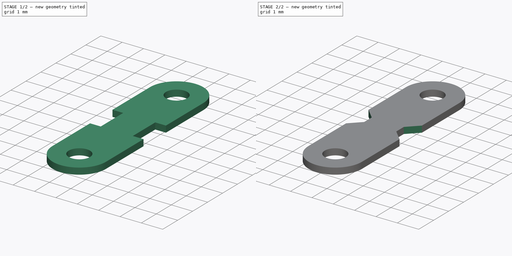
[diagram: build sequence overview — one tinted view per stage of 2, left to right]
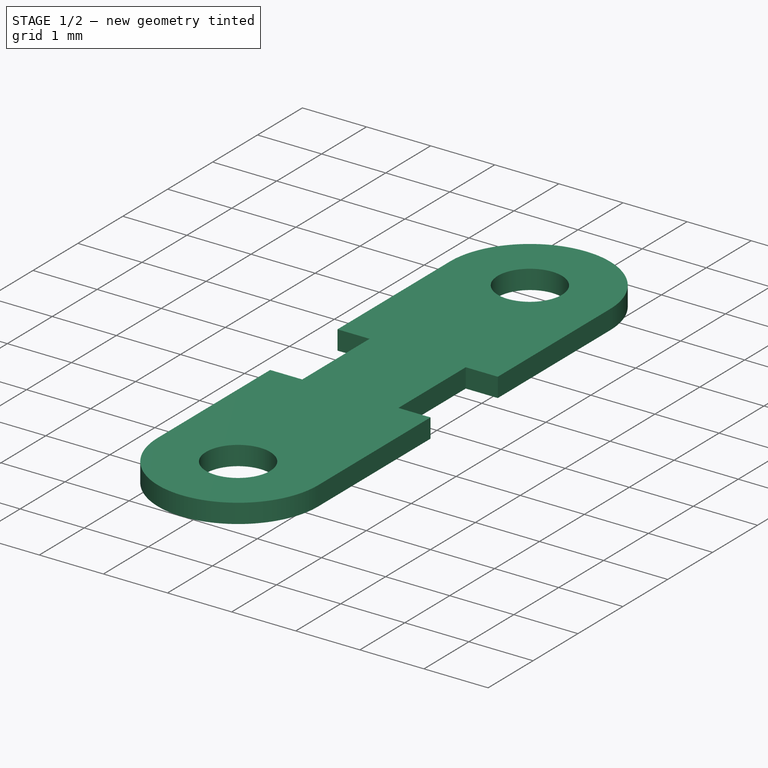
[diagram: stage 1 of 2 — iso view after this stage's code; geometry added in this stage tinted green]
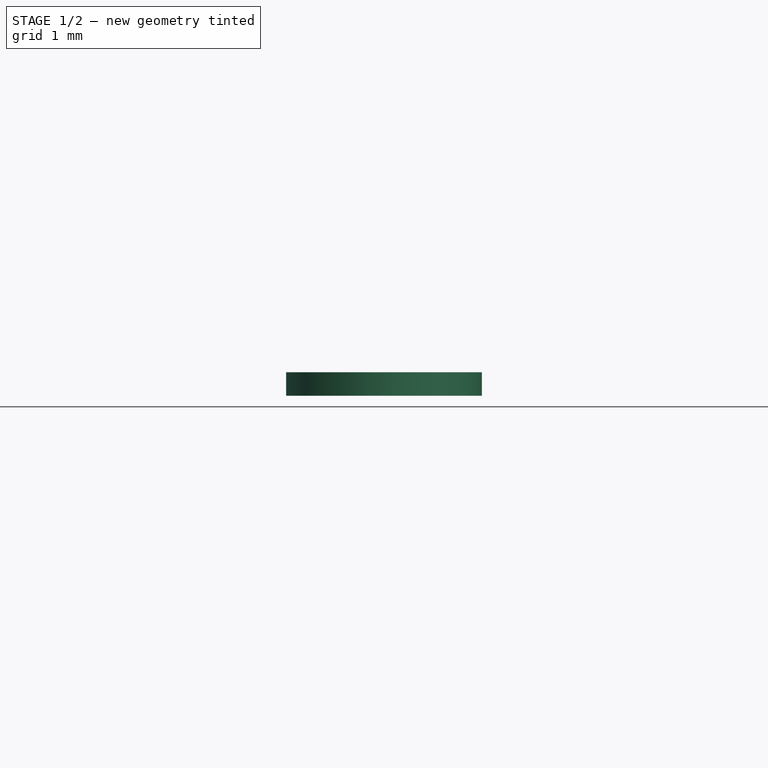
[diagram: stage 1 of 2 — front view after this stage's code; geometry added in this stage tinted green]
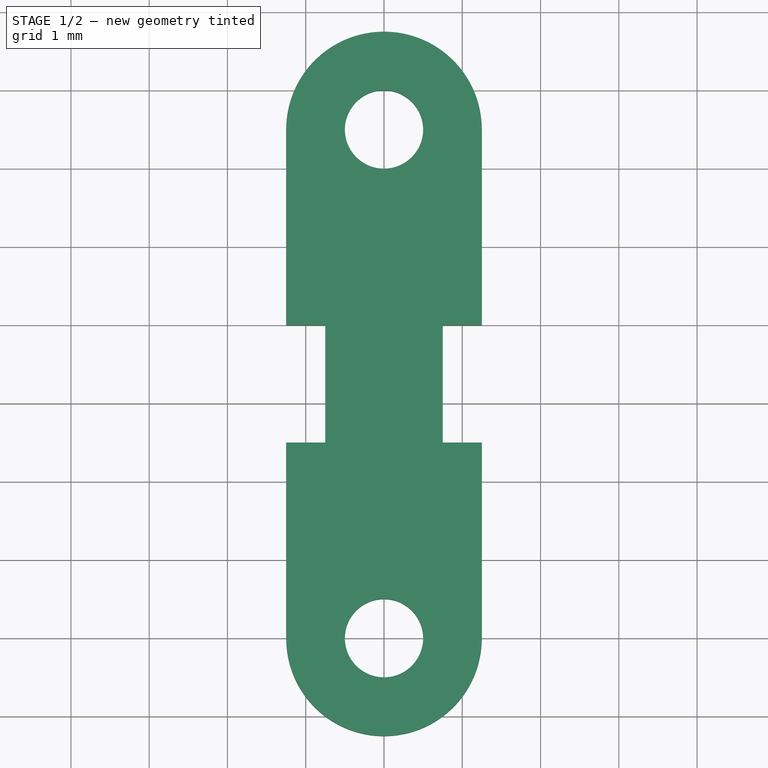
[diagram: stage 1 of 2 — top view after this stage's code; geometry added in this stage tinted green]
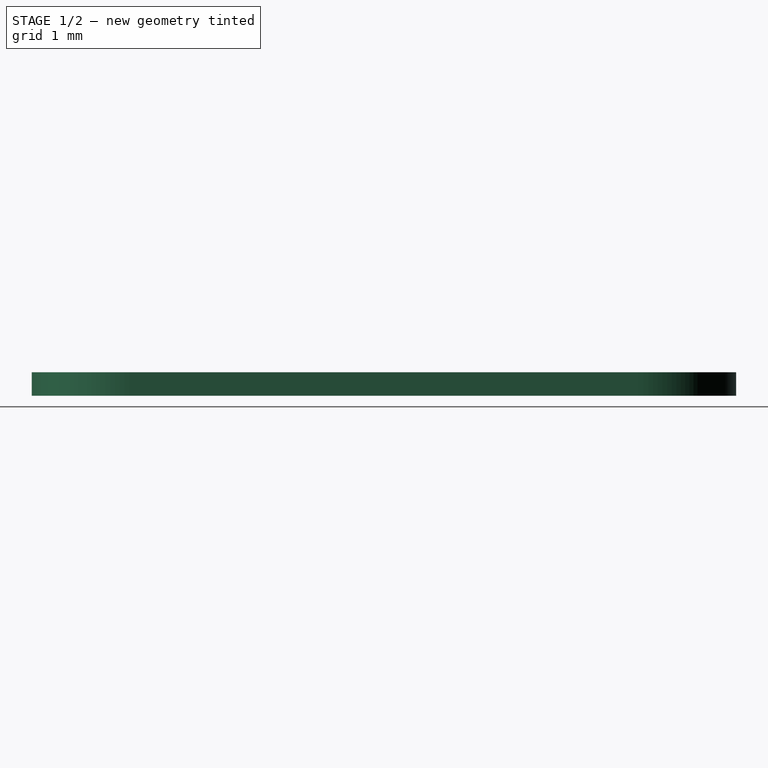
[diagram: stage 1 of 2 — right view after this stage's code; geometry added in this stage tinted green]
FCSTD DOCUMENT  (FreeCAD 0.18.3R)
Label: pot_tab
License: All rights reserved
LicenseURL: http://en.wikipedia.org/wiki/All_rights_reserved
objects: Sketcher::SketchObject×1, PartDesign::Pad×1, PartDesign::Chamfer×1, PartDesign::Body×1
note: 5 computed .brp shape members not serialized (recipe doc carries the construction recipe); baked Part::Feature solids carry a one-line shape summary decoded from their .brp

FEATURE [Sketcher::SketchObject] Sketch
  MapMode = 5
  Support = -> [XY_Plane]
  sketch-geometry (14):
    g0: LineSegment StartX=-0.75 StartY=0 StartZ=0 EndX=-0.75 EndY=-1.5 EndZ=0
    g1: LineSegment StartX=0.75 StartY=0 StartZ=0 EndX=0.75 EndY=-1.5 EndZ=0
    g2: LineSegment StartX=-0.75 StartY=-1.5 StartZ=0 EndX=-1.25 EndY=-1.5 EndZ=0
    g3: LineSegment StartX=0.75 StartY=-1.5 StartZ=0 EndX=1.25 EndY=-1.5 EndZ=0
    g4: LineSegment StartX=-1.25 StartY=-1.5 StartZ=0 EndX=-1.25 EndY=-4 EndZ=0
    g5: LineSegment StartX=1.25 StartY=-1.5 StartZ=0 EndX=1.25 EndY=-4 EndZ=0
    g6: ArcOfCircle CenterX=-1e-16 CenterY=-4 CenterZ=0 NormalX=0 NormalY=0 NormalZ=1 AngleXU=0 Radius=1.25 StartAngle=3.14159 EndAngle=6.28319
    g7: Circle CenterX=-1e-16 CenterY=-4 CenterZ=0 NormalX=0 NormalY=0 NormalZ=1 AngleXU=0 Radius=0.5
    g8: LineSegment StartX=0.75 StartY=0 StartZ=0 EndX=1.25 EndY=1e-16 EndZ=0
    g9: LineSegment StartX=-0.75 StartY=0 StartZ=0 EndX=-1.25 EndY=0 EndZ=0
    g10: LineSegment StartX=1.25 StartY=1e-16 StartZ=0 EndX=1.25 EndY=2.5 EndZ=0
    g11: LineSegment StartX=-1.25 StartY=0 StartZ=0 EndX=-1.25 EndY=2.5 EndZ=0
    g12: ArcOfCircle CenterX=0 CenterY=2.5 CenterZ=0 NormalX=0 NormalY=0 NormalZ=1 AngleXU=0 Radius=1.25 StartAngle=0 EndAngle=3.14159
    g13: Circle CenterX=0 CenterY=2.5 CenterZ=0 NormalX=0 NormalY=0 NormalZ=1 AngleXU=0 Radius=0.5
  constraints (40):
    c: Vertical(g0)
    c: Vertical(g1)
    c: Equal(g1,g0)
    c: Symmetric(g0,g1,g-2)
    c: DistanceY(g1,g1) = 1.5
    c: DistanceX(g0,g1) = 1.5
    c: Horizontal(g2)
    c: Coincident(g3,g1)
    c: Horizontal(g3)
    c: Equal(g2,g3)
    c: DistanceX(g2,g3) = 2.5
    c: Coincident(g2,g0)
    c: PointOnObject(g1,g-1)
    c: Coincident(g4,g2)
    c: Vertical(g4)
    c: Coincident(g5,g3)
    c: Vertical(g5)
    c: Equal(g5,g4)
    c: DistanceY(g5,g3) = 2.5
    c: Coincident(g6,g5)
    c: Coincident(g6,g4)
    c: Coincident(g7,g6)
    c: Diameter(g7) = 1
    c: Coincident(g8,g1)
    c: Coincident(g9,g0)
    c: PointOnObject(g9,g-1)
    c: Equal(g9,g8)
    c: Perpendicular(g8,g5) = 4.71239
    c: Horizontal(g6,g5)
    c: Coincident(g10,g8)
    c: Vertical(g10)
    c: Coincident(g11,g9)
    c: Vertical(g11)
    c: Equal(g11,g10)
    c: Equal(g10,g5)
    c: Coincident(g12,g10)
    c: Coincident(g12,g11)
    c: Horizontal(g12,g10)
    c: Coincident(g13,g12)
    c: Equal(g13,g7)
FEATURE [PartDesign::Pad] Pad
  Length = 0.3
  Length2 = 100
  Profile = -> Sketch
  Type = 0
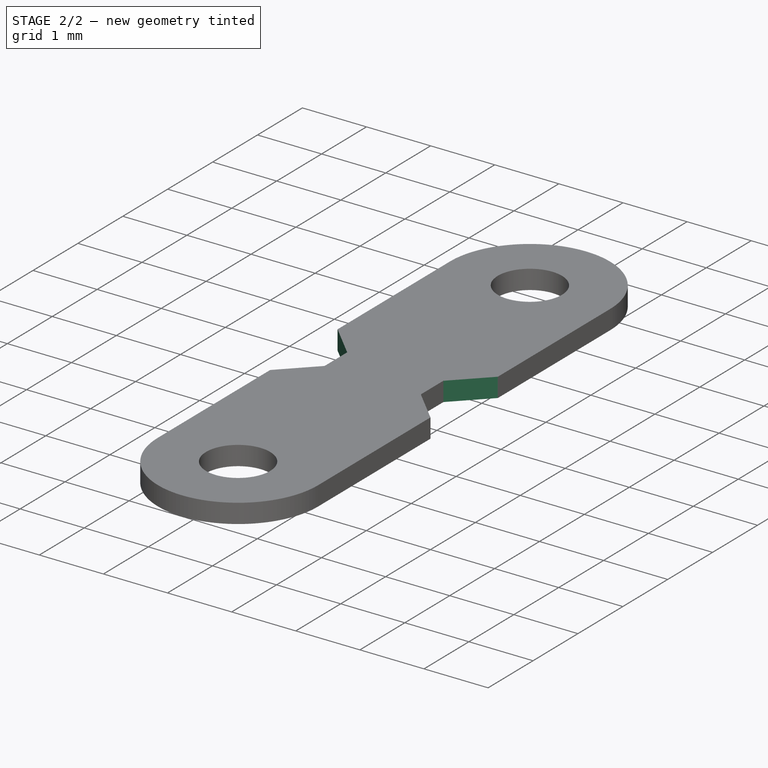
[diagram: stage 2 of 2 — iso view after this stage's code; geometry added in this stage tinted green]
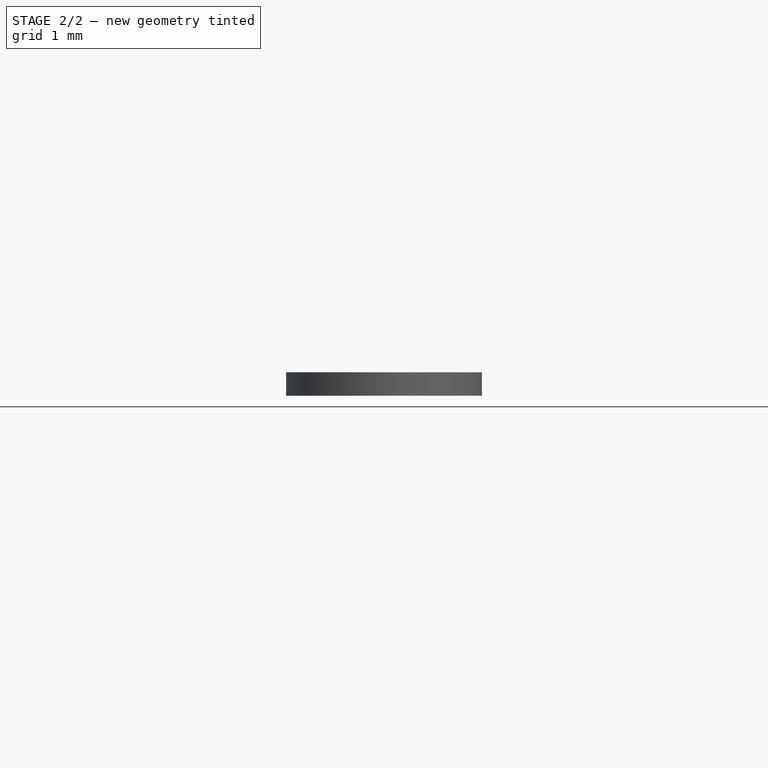
[diagram: stage 2 of 2 — front view after this stage's code; geometry added in this stage tinted green]
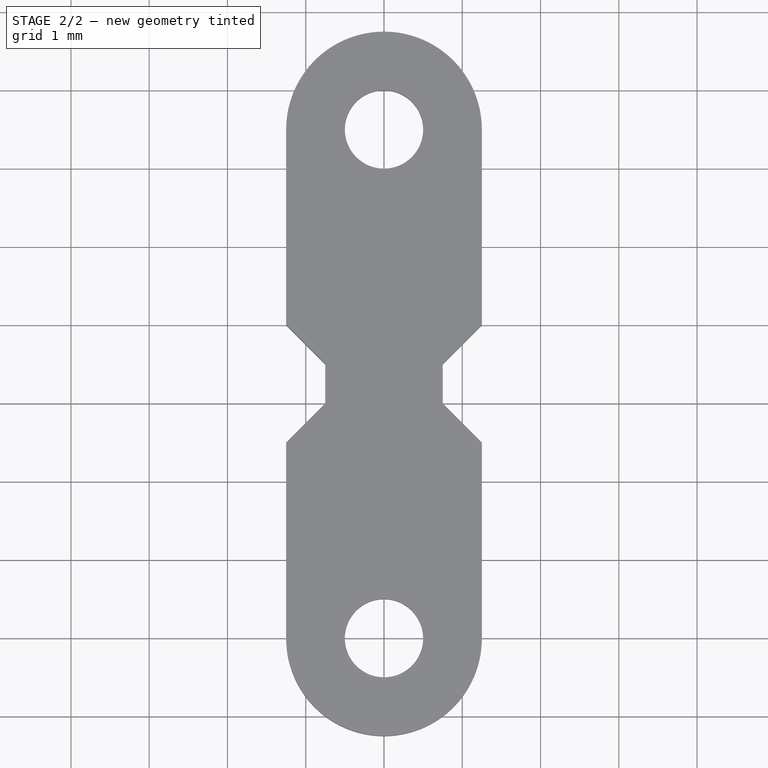
[diagram: stage 2 of 2 — top view after this stage's code; geometry added in this stage tinted green]
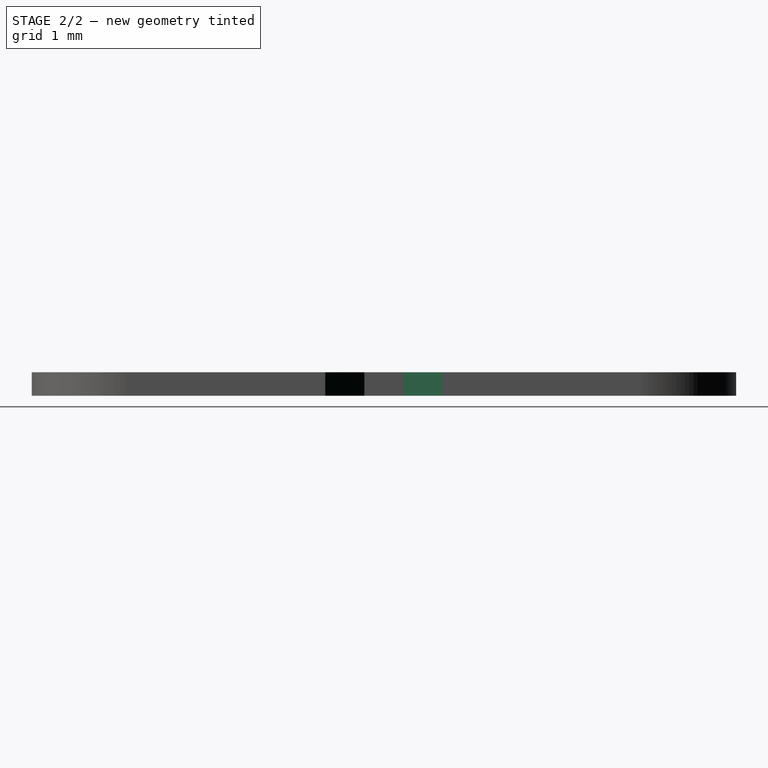
[diagram: stage 2 of 2 — right view after this stage's code; geometry added in this stage tinted green]
FEATURE [PartDesign::Chamfer] Chamfer
  Base = -> Pad [Edge1,Edge2,Edge20,Edge17]
  BaseFeature = -> Pad
  Size = 0.499
FEATURE [PartDesign::Body] Body
  Group = -> [Sketch,Pad,Chamfer]
  Origin = -> Origin
  Tip = -> Chamfer
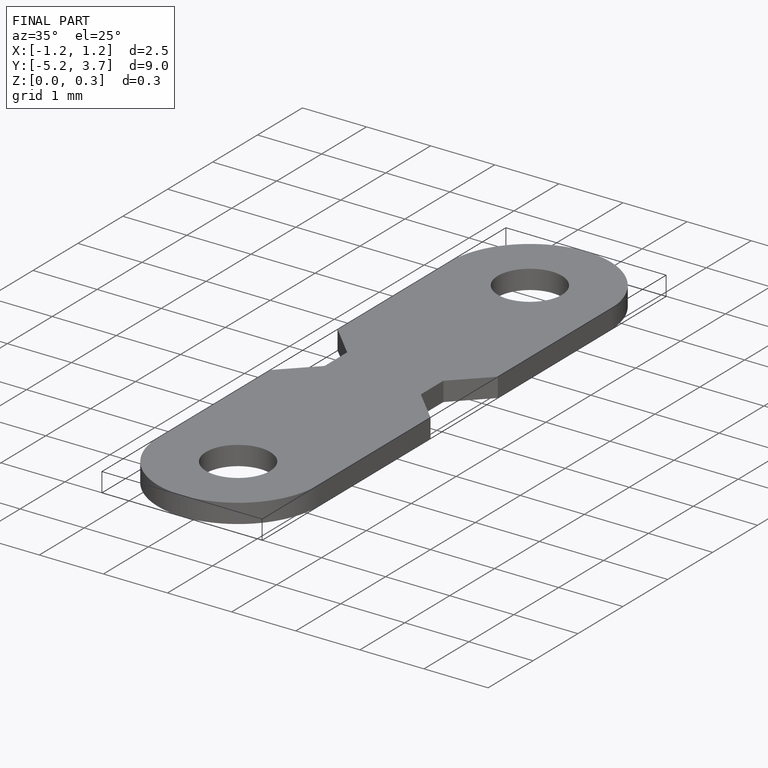
[diagram: finished part — iso view with bounding-box wireframe]
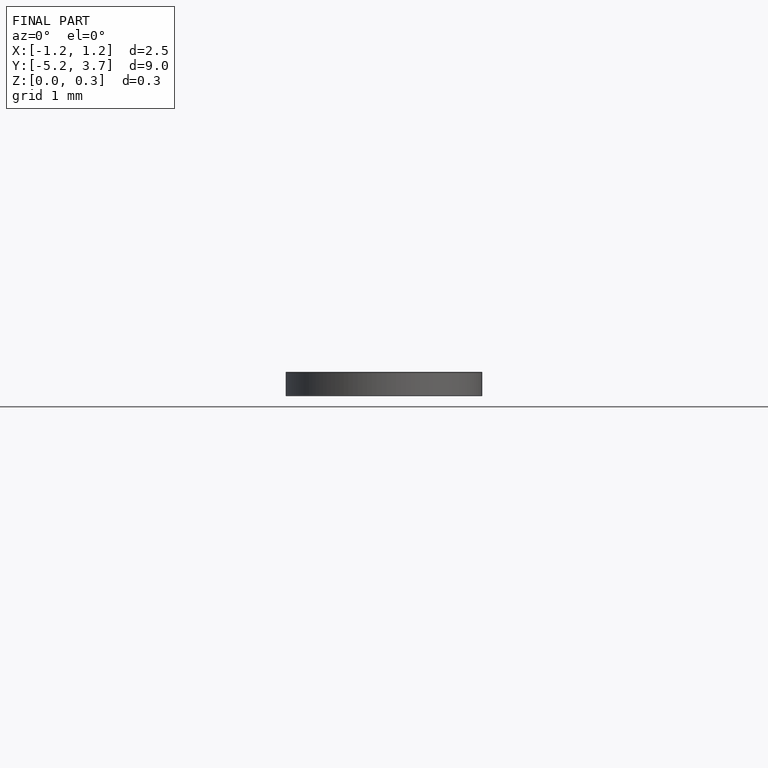
[diagram: finished part — front view with bounding-box wireframe]
